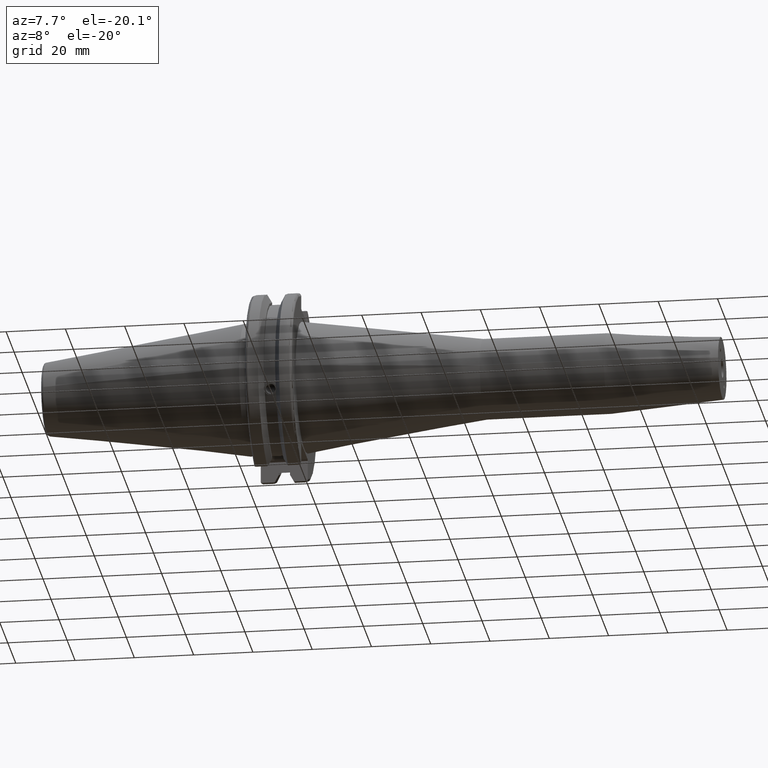
[diagram: clean part render]
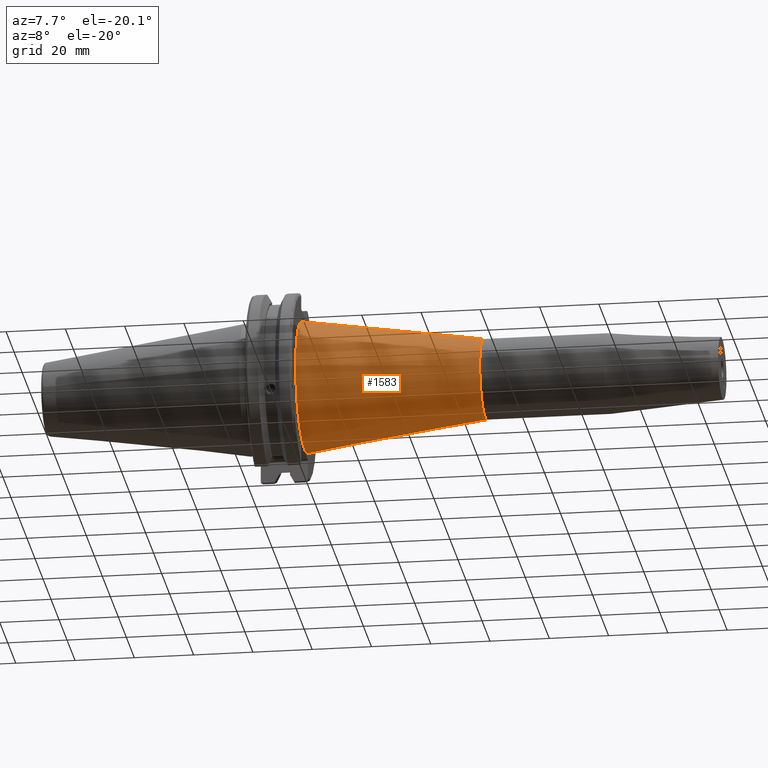
[diagram: same view with one face highlighted and labeled with its STEP entity id]
A machine part, auxiliary view. The second image highlights one B-rep face of the part: STEP entity #1583.
In plain terms, the highlighted conical surface has half-angle 8 deg.
Its self-contained STEP definition (entity closure, byte-faithful):
#143=CONICAL_SURFACE('',#1714,17.7829819375554,0.139626340159547);
#167=FACE_OUTER_BOUND('',#263,.T.);
#263=EDGE_LOOP('',(#1091,#1092,#1093,#1094));
#372=CIRCLE('',#1715,13.5);
#373=CIRCLE('',#1716,22.0659638751108);
#446=LINE('',#2494,#549);
#549=VECTOR('',#1945,17.7829819375554);
#661=VERTEX_POINT('',#2491);
#662=VERTEX_POINT('',#2493);
#830=EDGE_CURVE('',#661,#661,#372,.T.);
#831=EDGE_CURVE('',#661,#662,#446,.T.);
#832=EDGE_CURVE('',#662,#662,#373,.T.);
#1091=ORIENTED_EDGE('',*,*,#830,.F.);
#1092=ORIENTED_EDGE('',*,*,#831,.T.);
#1093=ORIENTED_EDGE('',*,*,#832,.F.);
#1094=ORIENTED_EDGE('',*,*,#831,.F.);
#1583=ADVANCED_FACE('',(#167),#143,.T.);
#1714=AXIS2_PLACEMENT_3D('',#2490,#1941,#1942);
#1715=AXIS2_PLACEMENT_3D('',#2492,#1943,#1944);
#1716=AXIS2_PLACEMENT_3D('',#2495,#1946,#1947);
#1941=DIRECTION('center_axis',(-1.,0.,0.));
#1942=DIRECTION('ref_axis',(0.,1.,0.));
#1943=DIRECTION('center_axis',(1.,0.,0.));
#1944=DIRECTION('ref_axis',(0.,0.,-1.));
#1945=DIRECTION('',(-0.99026806874157,-0.139173100960066,-1.70437892618156E-17));
#1946=DIRECTION('center_axis',(-1.,0.,0.));
#1947=DIRECTION('ref_axis',(0.,1.,0.));
#2490=CARTESIAN_POINT('Origin',(49.525,0.,0.));
#2491=CARTESIAN_POINT('',(80.,-13.5,-1.65327317884893E-15));
#2492=CARTESIAN_POINT('Origin',(80.,0.,0.));
#2493=CARTESIAN_POINT('',(19.05,-22.0659638751108,-2.70230120297555E-15));
#2494=CARTESIAN_POINT('',(49.525,-17.7829819375554,-2.17778719091224E-15));
#2495=CARTESIAN_POINT('Origin',(19.05,0.,0.));